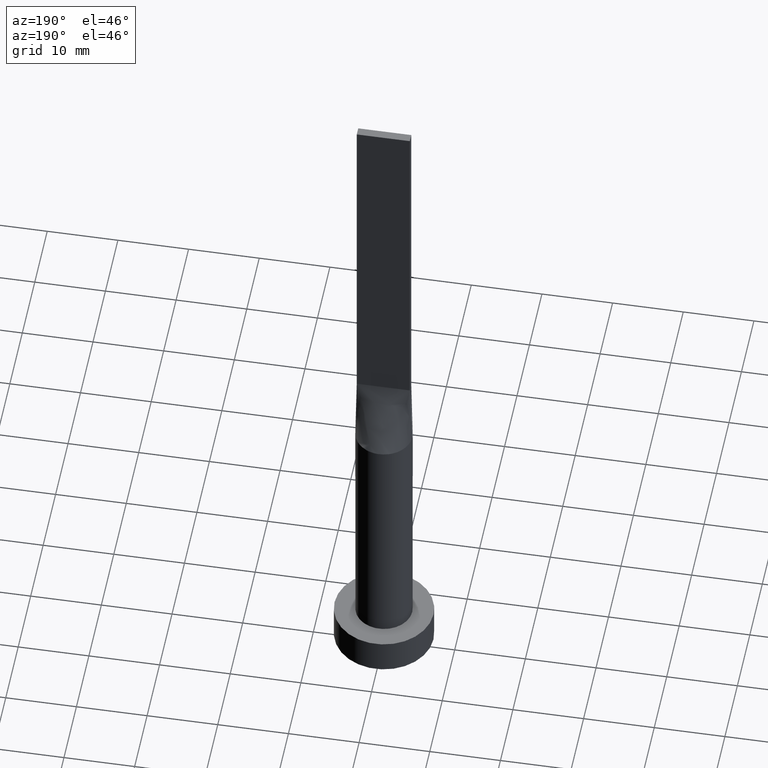
[diagram: clean part render]
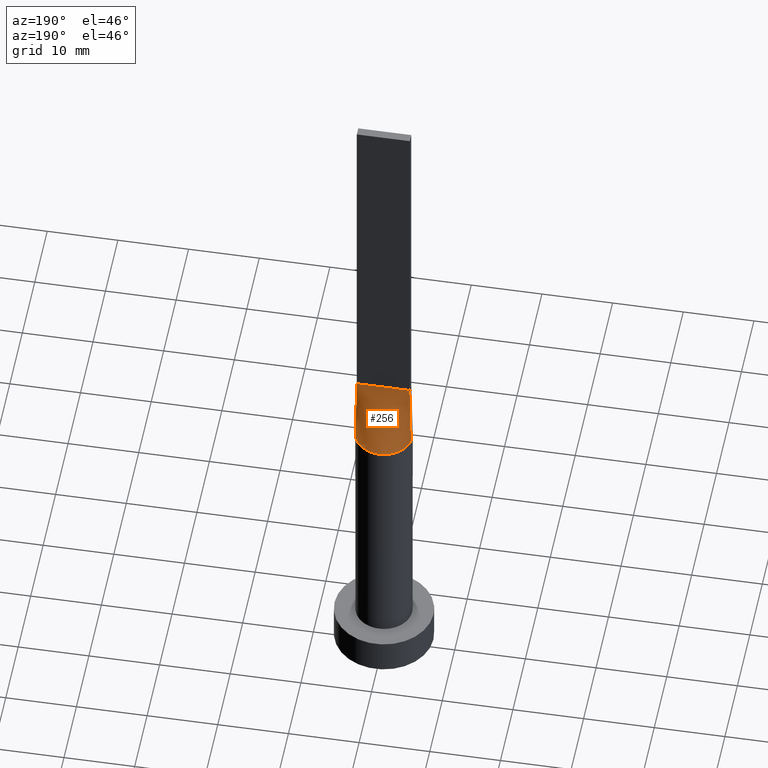
[diagram: same view with one face highlighted and labeled with its STEP entity id]
A machine part, auxiliary view. The second image highlights one B-rep face of the part: STEP entity #256.
In plain terms, the highlighted face is a freeform B-spline surface patch.
Its self-contained STEP definition (entity closure, byte-faithful):
#18 = CARTESIAN_POINT ( 'NONE',  ( -3.849881263833410561, 0.6159810022133451746, 45.00000000000000000 ) ) ;
#20 = CARTESIAN_POINT ( 'NONE',  ( -1.562500000000004441, 0.6000000000000000888, 50.00000000000000000 ) ) ;
#21 = CARTESIAN_POINT ( 'NONE',  ( -3.461914487322979905, 2.043998057340944197, 40.00000000000000711 ) ) ;
#23 = CARTESIAN_POINT ( 'NONE',  ( 0.5684794080625145130, 4.000000000000000000, 39.99999999999999289 ) ) ;
#27 = CARTESIAN_POINT ( 'NONE',  ( -2.127794970397209884, 3.430476893735948440, 39.99999999999999289 ) ) ;
#35 = CARTESIAN_POINT ( 'NONE',  ( 1.134810363096318664, 3.874001625491799050, 40.00000000000000000 ) ) ;
#37 = CARTESIAN_POINT ( 'NONE',  ( 0.5684794080625145130, 4.000000000000000000, 39.99999999999999289 ) ) ;
#56 = CARTESIAN_POINT ( 'NONE',  ( 1.562499999999994893, 0.6000000000000000888, 50.00000000000000000 ) ) ;
#59 = CARTESIAN_POINT ( 'NONE',  ( 3.800365609718893367, 1.311488165564687058, 40.00000000000000711 ) ) ;
#61 = CARTESIAN_POINT ( 'NONE',  ( -3.800365609718893811, 1.311488165564686392, 40.00000000000000000 ) ) ;
#67 = CARTESIAN_POINT ( 'NONE',  ( 3.461914487322979017, 2.043998057340944197, 40.00000000000000000 ) ) ;
#70 = CARTESIAN_POINT ( 'NONE',  ( -3.897760447583618504, 0.9569750049467115049, 40.00000000000000000 ) ) ;
#73 = VECTOR ( 'NONE', #271, 1000.000000000000000 ) ;
#78 = VERTEX_POINT ( 'NONE', #384 ) ;
#103 = CARTESIAN_POINT ( 'NONE',  ( 3.219262664220058134, 2.422342486356523938, 39.99999999999999289 ) ) ;
#108 = CARTESIAN_POINT ( 'NONE',  ( 3.437499999999998668, 0.6000000000000001998, 50.00000000000000000 ) ) ;
#116 = CARTESIAN_POINT ( 'NONE',  ( 3.800365609718893367, 1.311488165564687058, 40.00000000000000711 ) ) ;
#121 = CARTESIAN_POINT ( 'NONE',  ( -3.800365609718893811, 1.311488165564686392, 40.00000000000000000 ) ) ;
#130 = VERTEX_POINT ( 'NONE', #294 ) ;
#138 = EDGE_CURVE ( 'NONE', #155, #78, #479, .T. ) ;
#142 = CARTESIAN_POINT ( 'NONE',  ( -2.187500000000003109, 0.6000000000000000888, 50.00000000000000000 ) ) ;
#145 = CARTESIAN_POINT ( 'NONE',  ( 3.897760447583618948, 0.9569750049467118380, 40.00000000000000000 ) ) ;
#146 = CARTESIAN_POINT ( 'NONE',  ( -3.750000000000000000, 0.6000000000000001998, 50.00000000000000000 ) ) ;
#155 = VERTEX_POINT ( 'NONE', #422 ) ;
#161 = CARTESIAN_POINT ( 'NONE',  ( 2.553164211252348714, 3.116528153703943538, 40.00000000000000000 ) ) ;
#177 = EDGE_CURVE ( 'NONE', #130, #550, #440, .T. ) ;
#179 = CARTESIAN_POINT ( 'NONE',  ( 3.750000000000000000, 0.6000000000000001998, 50.00000000000000000 ) ) ;
#188 = CARTESIAN_POINT ( 'NONE',  ( -2.500000000000002665, 0.6000000000000000888, 50.00000000000000000 ) ) ;
#193 = CARTESIAN_POINT ( 'NONE',  ( -3.219262664220059023, 2.422342486356523938, 39.99999999999998579 ) ) ;
#211 = EDGE_CURVE ( 'NONE', #78, #550, #533, .T. ) ;
#226 = CARTESIAN_POINT ( 'NONE',  ( 0.3124999999999934497, 0.6000000000000000888, 50.00000000000000711 ) ) ;
#230 = CARTESIAN_POINT ( 'NONE',  ( 2.499999999999996003, 0.6000000000000000888, 50.00000000000000000 ) ) ;
#235 = CARTESIAN_POINT ( 'NONE',  ( 1.249999999999994671, 0.6000000000000000888, 50.00000000000000000 ) ) ;
#237 = EDGE_LOOP ( 'NONE', ( #381, #531, #263, #542 ) ) ;
#239 = CARTESIAN_POINT ( 'NONE',  ( -3.897760447583618504, 0.9569750049467115049, 40.00000000000000000 ) ) ;
#241 = VECTOR ( 'NONE', #429, 1000.000000000000000 ) ;
#256 = ADVANCED_FACE ( 'NONE', ( #421 ), #504, .T. ) ;
#263 = ORIENTED_EDGE ( 'NONE', *, *, #211, .F. ) ;
#271 = DIRECTION ( 'NONE',  ( 0.01997216621675832263, -0.003195546594681204517, 0.9997954296047624201 ) ) ;
#278 = CARTESIAN_POINT ( 'NONE',  ( 1.134810363096318664, 3.874001625491799050, 40.00000000000000000 ) ) ;
#284 = CARTESIAN_POINT ( 'NONE',  ( -2.553164211252348714, 3.116528153703943538, 39.99999999999999289 ) ) ;
#286 = CARTESIAN_POINT ( 'NONE',  ( -3.125000000000000888, 0.6000000000000000888, 50.00000000000000000 ) ) ;
#289 = CARTESIAN_POINT ( 'NONE',  ( 3.461914487322979017, 2.043998057340944197, 40.00000000000000000 ) ) ;
#294 = CARTESIAN_POINT ( 'NONE',  ( -3.950102418235696522, 0.6320155757311002320, 40.00000000000000000 ) ) ;
#295 = CARTESIAN_POINT ( 'NONE',  ( -1.134810363096319996, 3.874001625491799938, 40.00000000000000711 ) ) ;
#319 = CARTESIAN_POINT ( 'NONE',  ( -3.437500000000000444, 0.6000000000000000888, 50.00000000000000000 ) ) ;
#325 = CARTESIAN_POINT ( 'NONE',  ( -1.134810363096319996, 3.874001625491799938, 40.00000000000000711 ) ) ;
#335 = CARTESIAN_POINT ( 'NONE',  ( -3.750000000000000000, 0.6000000000000001998, 50.00000000000000000 ) ) ;
#344 = CARTESIAN_POINT ( 'NONE',  ( -0.5684794080625158452, 3.999999999999999112, 39.99999999999999289 ) ) ;
#364 = B_SPLINE_CURVE_WITH_KNOTS ( 'NONE', 3,
 ( #526, #378, #116, #289, #425, #161, #580, #35, #37, #344, #295, #532, #284, #523, #471, #121, #70, #567 ),
 .UNSPECIFIED., .F., .F.,
 ( 4, 2, 2, 2, 2, 2, 2, 2, 4 ),
 ( 0.000000000000000000, 0.1249999999999999445, 0.2499999999999998890, 0.3749999999999998335, 0.4999999999999997780, 0.6249999999999997780, 0.7499999999999998890, 0.8749999999999998890, 1.000000000000000000 ),
 .UNSPECIFIED. ) ;
#367 = CARTESIAN_POINT ( 'NONE',  ( -0.6250000000000056621, 0.6000000000000000888, 50.00000000000000000 ) ) ;
#370 = CARTESIAN_POINT ( 'NONE',  ( -0.3125000000000063283, 0.6000000000000000888, 50.00000000000000711 ) ) ;
#372 = CARTESIAN_POINT ( 'NONE',  ( 2.127794970397208107, 3.430476893735948885, 39.99999999999999289 ) ) ;
#378 = CARTESIAN_POINT ( 'NONE',  ( 3.897760447583618948, 0.9569750049467118380, 40.00000000000000000 ) ) ;
#381 = ORIENTED_EDGE ( 'NONE', *, *, #560, .T. ) ;
#384 = CARTESIAN_POINT ( 'NONE',  ( 3.750000000000000000, 0.6000000000000001998, 50.00000000000000000 ) ) ;
#413 = DIRECTION ( 'NONE',  ( -1.000000000000000000, -0.000000000000000000, -0.000000000000000000 ) ) ;
#415 = CARTESIAN_POINT ( 'NONE',  ( -3.949762527666821565, 0.6319620044266903713, 40.00000000000000000 ) ) ;
#419 = CARTESIAN_POINT ( 'NONE',  ( -0.5684794080625158452, 3.999999999999999112, 39.99999999999999289 ) ) ;
#421 = FACE_OUTER_BOUND ( 'NONE', #237, .T. ) ;
#422 = CARTESIAN_POINT ( 'NONE',  ( 3.950097303404373150, 0.6320148730971616446, 40.00000000000000000 ) ) ;
#423 = CARTESIAN_POINT ( 'NONE',  ( 3.124999999999997780, 0.6000000000000001998, 50.00000000000000000 ) ) ;
#425 = CARTESIAN_POINT ( 'NONE',  ( 3.219262664220058134, 2.422342486356523938, 39.99999999999999289 ) ) ;
#429 = DIRECTION ( 'NONE',  ( -0.01997216621675832263, -0.003195546594681161149, 0.9997954296047624201 ) ) ;
#436 = CARTESIAN_POINT ( 'NONE',  ( 3.849881263833410561, 0.6159810022133449525, 45.00000000000000000 ) ) ;
#440 = LINE ( 'NONE', #18, #73 ) ;
#464 = CARTESIAN_POINT ( 'NONE',  ( 2.553164211252348714, 3.116528153703943538, 40.00000000000000000 ) ) ;
#468 = CARTESIAN_POINT ( 'NONE',  ( 0.6249999999999938938, 0.6000000000000000888, 50.00000000000000000 ) ) ;
#471 = CARTESIAN_POINT ( 'NONE',  ( -3.461914487322979905, 2.043998057340944197, 40.00000000000000711 ) ) ;
#479 = LINE ( 'NONE', #436, #241 ) ;
#504 = B_SPLINE_SURFACE_WITH_KNOTS ( 'NONE', 3, 1, ( 
 ( #515, #179 ),
 ( #145, #108 ),
 ( #59, #423 ),
 ( #67, #230 ),
 ( #103, #510 ),
 ( #464, #56 ),
 ( #372, #235 ),
 ( #278, #468 ),
 ( #23, #226 ),
 ( #419, #370 ),
 ( #325, #367 ),
 ( #27, #559 ),
 ( #549, #20 ),
 ( #193, #142 ),
 ( #21, #188 ),
 ( #61, #286 ),
 ( #239, #319 ),
 ( #415, #146 ) ),
 .UNSPECIFIED., .F., .F., .F.,
 ( 4, 2, 2, 2, 2, 2, 2, 2, 4 ),
 ( 2, 2 ),
 ( 0.000000000000000000, 0.1249999999999999445, 0.2499999999999998890, 0.3749999999999998335, 0.4999999999999997780, 0.6249999999999997780, 0.7499999999999998890, 0.8749999999999998890, 1.000000000000000000 ),
 ( 0.000000000000000000, 1.000000000000000000 ),
 .UNSPECIFIED. ) ;
#510 = CARTESIAN_POINT ( 'NONE',  ( 2.187499999999996003, 0.6000000000000000888, 50.00000000000000000 ) ) ;
#515 = CARTESIAN_POINT ( 'NONE',  ( 3.949762527666821565, 0.6319620044266911485, 40.00000000000000000 ) ) ;
#523 = CARTESIAN_POINT ( 'NONE',  ( -3.219262664220059023, 2.422342486356523938, 39.99999999999998579 ) ) ;
#526 = CARTESIAN_POINT ( 'NONE',  ( 3.950097303404373150, 0.6320148730971616446, 40.00000000000000000 ) ) ;
#531 = ORIENTED_EDGE ( 'NONE', *, *, #177, .T. ) ;
#532 = CARTESIAN_POINT ( 'NONE',  ( -2.127794970397209884, 3.430476893735948440, 39.99999999999999289 ) ) ;
#533 = LINE ( 'NONE', #537, #575 ) ;
#537 = CARTESIAN_POINT ( 'NONE',  ( -3.750000000000000000, 0.6000000000000001998, 50.00000000000000000 ) ) ;
#542 = ORIENTED_EDGE ( 'NONE', *, *, #138, .F. ) ;
#549 = CARTESIAN_POINT ( 'NONE',  ( -2.553164211252348714, 3.116528153703943538, 39.99999999999999289 ) ) ;
#550 = VERTEX_POINT ( 'NONE', #335 ) ;
#559 = CARTESIAN_POINT ( 'NONE',  ( -1.250000000000004663, 0.6000000000000000888, 50.00000000000000000 ) ) ;
#560 = EDGE_CURVE ( 'NONE', #155, #130, #364, .T. ) ;
#567 = CARTESIAN_POINT ( 'NONE',  ( -3.950102418235696522, 0.6320155757311002320, 40.00000000000000000 ) ) ;
#575 = VECTOR ( 'NONE', #413, 1000.000000000000000 ) ;
#580 = CARTESIAN_POINT ( 'NONE',  ( 2.127794970397208107, 3.430476893735948885, 39.99999999999999289 ) ) ;